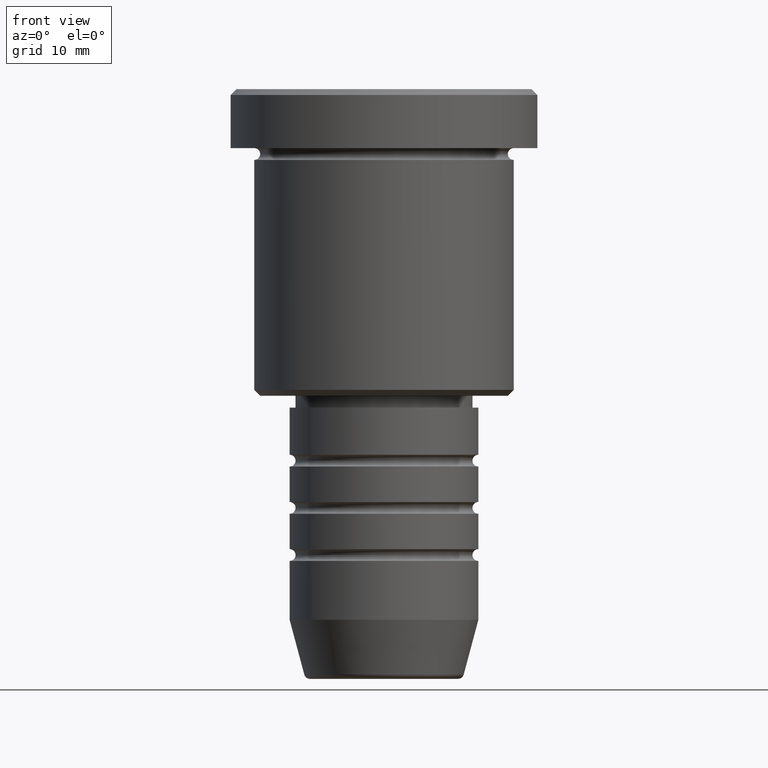
[diagram: clean part render]
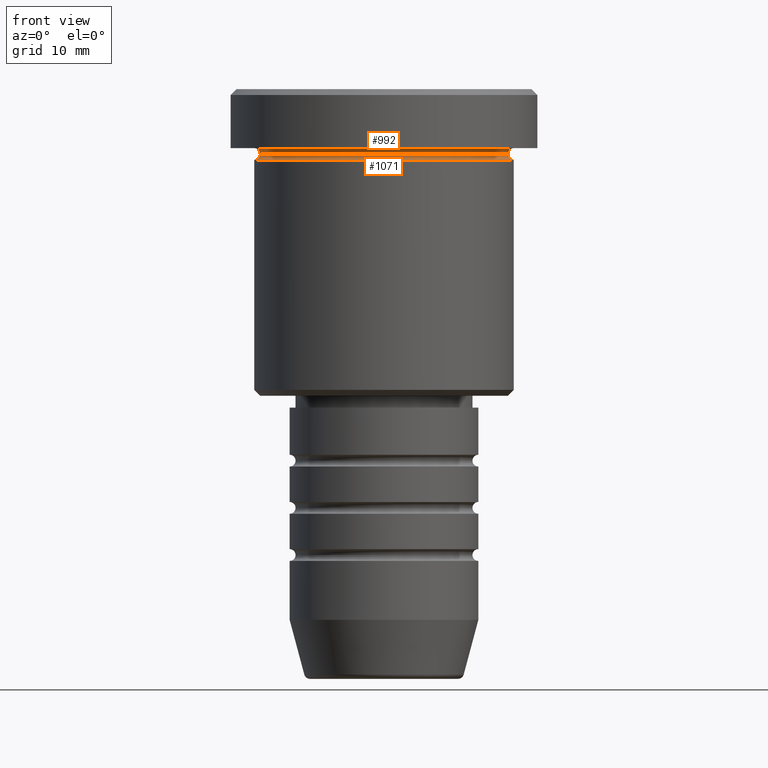
[diagram: same view with one multi-face feature highlighted, each face labeled with its STEP entity id]
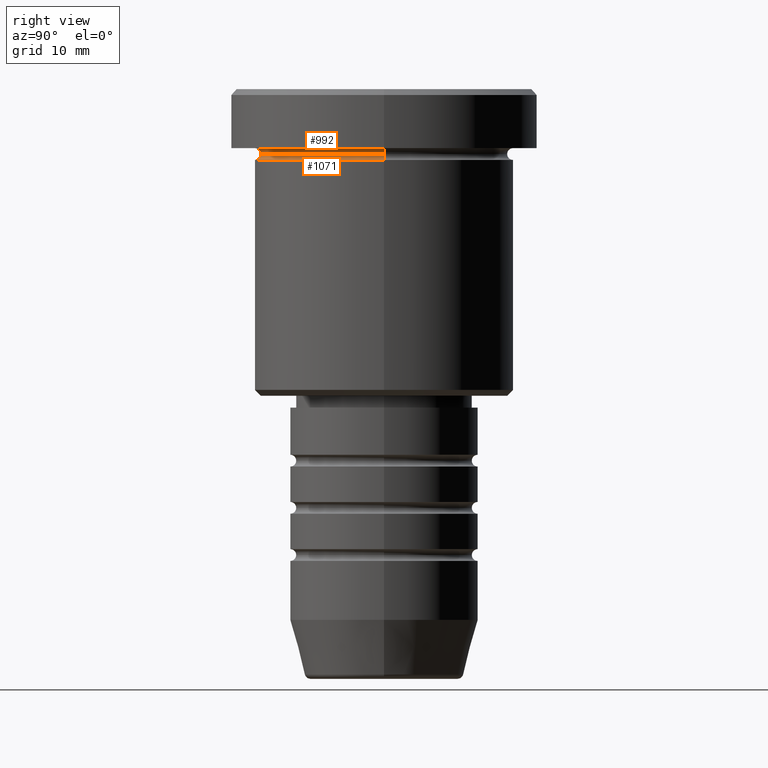
[diagram: same view with one multi-face feature highlighted, each face labeled with its STEP entity id]
A machine part, front view. The highlighted faces form ONE feature: a constant-radius fillet chain: 2 tangent blend faces with common blend radius 0.5 mm. The faces share edges in the B-rep.
A second angle (right view) of the same feature is appended — it is thin or edge-on in the first view.
Their STEP definitions:
[1] entity #992 (Torus):
#50 = CIRCLE ( 'NONE', #438, 0.5000000000000004441 ) ;
#60 = VERTEX_POINT ( 'NONE', #557 ) ;
#75 = DIRECTION ( 'NONE',  ( 0.000000000000000000, 0.000000000000000000, -1.000000000000000000 ) ) ;
#86 = DIRECTION ( 'NONE',  ( -1.000000000000000000, 0.000000000000000000, 0.000000000000000000 ) ) ;
#119 = EDGE_CURVE ( 'NONE', #60, #1101, #663, .T. ) ;
#129 = DIRECTION ( 'NONE',  ( -0.000000000000000000, -0.000000000000000000, 1.000000000000000000 ) ) ;
#201 = DIRECTION ( 'NONE',  ( -1.224646799147353207E-16, 1.000000000000000000, 0.000000000000000000 ) ) ;
#275 = CARTESIAN_POINT ( 'NONE',  ( 0.000000000000000000, 0.000000000000000000, -5.000000000000000000 ) ) ;
#292 = AXIS2_PLACEMENT_3D ( 'NONE', #960, #129, #877 ) ;
#300 = AXIS2_PLACEMENT_3D ( 'NONE', #825, #1177, #364 ) ;
#334 = ORIENTED_EDGE ( 'NONE', *, *, #119, .F. ) ;
#364 = DIRECTION ( 'NONE',  ( 0.000000000000000000, 0.000000000000000000, -1.000000000000000000 ) ) ;
#424 = CARTESIAN_POINT ( 'NONE',  ( 11.00000000000000000, 1.347111479062088405E-15, -4.999999999999999112 ) ) ;
#430 = EDGE_CURVE ( 'NONE', #862, #567, #50, .T. ) ;
#438 = AXIS2_PLACEMENT_3D ( 'NONE', #853, #201, #940 ) ;
#445 = DIRECTION ( 'NONE',  ( -1.000000000000000000, 0.000000000000000000, 0.000000000000000000 ) ) ;
#453 = AXIS2_PLACEMENT_3D ( 'NONE', #615, #75, #86 ) ;
#508 = TOROIDAL_SURFACE ( 'NONE', #453, 11.00000000000000000, 0.5000000000000000000 ) ;
#533 = CARTESIAN_POINT ( 'NONE',  ( -11.00000000000000000, 0.000000000000000000, -4.999999999999999112 ) ) ;
#557 = CARTESIAN_POINT ( 'NONE',  ( -10.49999999999999822, 1.316495309083404420E-15, -5.500000000000000000 ) ) ;
#567 = VERTEX_POINT ( 'NONE', #424 ) ;
#578 = EDGE_CURVE ( 'NONE', #60, #862, #866, .T. ) ;
#582 = FACE_OUTER_BOUND ( 'NONE', #1140, .T. ) ;
#615 = CARTESIAN_POINT ( 'NONE',  ( 0.000000000000000000, 0.000000000000000000, -5.500000000000000000 ) ) ;
#619 = ORIENTED_EDGE ( 'NONE', *, *, #430, .T. ) ;
#663 = CIRCLE ( 'NONE', #300, 0.5000000000000004441 ) ;
#714 = AXIS2_PLACEMENT_3D ( 'NONE', #275, #1007, #445 ) ;
#735 = CIRCLE ( 'NONE', #714, 11.00000000000000000 ) ;
#825 = CARTESIAN_POINT ( 'NONE',  ( -11.00000000000000000, 0.000000000000000000, -5.500000000000000000 ) ) ;
#853 = CARTESIAN_POINT ( 'NONE',  ( 11.00000000000000000, 1.347111479062088405E-15, -5.500000000000000000 ) ) ;
#854 = ORIENTED_EDGE ( 'NONE', *, *, #1005, .F. ) ;
#862 = VERTEX_POINT ( 'NONE', #956 ) ;
#866 = CIRCLE ( 'NONE', #292, 10.49999999999999822 ) ;
#877 = DIRECTION ( 'NONE',  ( 1.000000000000000000, 0.000000000000000000, 0.000000000000000000 ) ) ;
#940 = DIRECTION ( 'NONE',  ( -1.000000000000000000, -1.224646799147353454E-16, 0.000000000000000000 ) ) ;
#956 = CARTESIAN_POINT ( 'NONE',  ( 10.49999999999999822, 0.000000000000000000, -5.500000000000000000 ) ) ;
#960 = CARTESIAN_POINT ( 'NONE',  ( 0.000000000000000000, 0.000000000000000000, -5.500000000000000000 ) ) ;
#992 = ADVANCED_FACE ( 'NONE', ( #582 ), #508, .F. ) ;
#1005 = EDGE_CURVE ( 'NONE', #1101, #567, #735, .T. ) ;
#1007 = DIRECTION ( 'NONE',  ( -0.000000000000000000, -0.000000000000000000, 1.000000000000000000 ) ) ;
#1101 = VERTEX_POINT ( 'NONE', #533 ) ;
#1140 = EDGE_LOOP ( 'NONE', ( #1159, #619, #854, #334 ) ) ;
#1159 = ORIENTED_EDGE ( 'NONE', *, *, #578, .T. ) ;
#1177 = DIRECTION ( 'NONE',  ( -0.000000000000000000, -1.000000000000000000, -0.000000000000000000 ) ) ;
[2] entity #1071 (Torus):
#13 = DIRECTION ( 'NONE',  ( 0.000000000000000000, -1.000000000000000000, 0.000000000000000000 ) ) ;
#36 = CARTESIAN_POINT ( 'NONE',  ( 0.000000000000000000, 0.000000000000000000, -5.500000000000000000 ) ) ;
#60 = VERTEX_POINT ( 'NONE', #557 ) ;
#77 = DIRECTION ( 'NONE',  ( 1.000000000000000000, 0.000000000000000000, 0.000000000000000000 ) ) ;
#80 = EDGE_CURVE ( 'NONE', #60, #784, #291, .T. ) ;
#120 = EDGE_CURVE ( 'NONE', #784, #1178, #412, .T. ) ;
#129 = DIRECTION ( 'NONE',  ( -0.000000000000000000, -0.000000000000000000, 1.000000000000000000 ) ) ;
#211 = TOROIDAL_SURFACE ( 'NONE', #764, 11.00000000000000000, 0.5000000000000000000 ) ;
#227 = DIRECTION ( 'NONE',  ( -1.000000000000000000, 1.224646799147353454E-16, 0.000000000000000000 ) ) ;
#269 = AXIS2_PLACEMENT_3D ( 'NONE', #313, #771, #227 ) ;
#291 = CIRCLE ( 'NONE', #269, 0.5000000000000004441 ) ;
#292 = AXIS2_PLACEMENT_3D ( 'NONE', #960, #129, #877 ) ;
#293 = CIRCLE ( 'NONE', #1128, 0.5000000000000004441 ) ;
#313 = CARTESIAN_POINT ( 'NONE',  ( -11.00000000000000000, 1.347111479062088405E-15, -5.500000000000000000 ) ) ;
#412 = CIRCLE ( 'NONE', #560, 11.00000000000000000 ) ;
#448 = DIRECTION ( 'NONE',  ( 1.000000000000000000, 0.000000000000000000, 0.000000000000000000 ) ) ;
#513 = FACE_OUTER_BOUND ( 'NONE', #673, .T. ) ;
#525 = DIRECTION ( 'NONE',  ( -0.000000000000000000, -0.000000000000000000, 1.000000000000000000 ) ) ;
#557 = CARTESIAN_POINT ( 'NONE',  ( -10.49999999999999822, 1.316495309083404420E-15, -5.500000000000000000 ) ) ;
#560 = AXIS2_PLACEMENT_3D ( 'NONE', #733, #807, #448 ) ;
#571 = ORIENTED_EDGE ( 'NONE', *, *, #859, .F. ) ;
#576 = CARTESIAN_POINT ( 'NONE',  ( 11.00000000000000000, 0.000000000000000000, -5.500000000000000000 ) ) ;
#578 = EDGE_CURVE ( 'NONE', #60, #862, #866, .T. ) ;
#632 = ORIENTED_EDGE ( 'NONE', *, *, #120, .T. ) ;
#645 = DIRECTION ( 'NONE',  ( 0.000000000000000000, 0.000000000000000000, -1.000000000000000000 ) ) ;
#671 = ORIENTED_EDGE ( 'NONE', *, *, #80, .T. ) ;
#673 = EDGE_LOOP ( 'NONE', ( #812, #671, #632, #571 ) ) ;
#733 = CARTESIAN_POINT ( 'NONE',  ( 0.000000000000000000, 0.000000000000000000, -5.999999999999999112 ) ) ;
#764 = AXIS2_PLACEMENT_3D ( 'NONE', #36, #525, #77 ) ;
#771 = DIRECTION ( 'NONE',  ( 1.224646799147353207E-16, 1.000000000000000000, 0.000000000000000000 ) ) ;
#784 = VERTEX_POINT ( 'NONE', #1156 ) ;
#807 = DIRECTION ( 'NONE',  ( -0.000000000000000000, -0.000000000000000000, 1.000000000000000000 ) ) ;
#812 = ORIENTED_EDGE ( 'NONE', *, *, #578, .F. ) ;
#859 = EDGE_CURVE ( 'NONE', #862, #1178, #293, .T. ) ;
#862 = VERTEX_POINT ( 'NONE', #956 ) ;
#866 = CIRCLE ( 'NONE', #292, 10.49999999999999822 ) ;
#877 = DIRECTION ( 'NONE',  ( 1.000000000000000000, 0.000000000000000000, 0.000000000000000000 ) ) ;
#956 = CARTESIAN_POINT ( 'NONE',  ( 10.49999999999999822, 0.000000000000000000, -5.500000000000000000 ) ) ;
#960 = CARTESIAN_POINT ( 'NONE',  ( 0.000000000000000000, 0.000000000000000000, -5.500000000000000000 ) ) ;
#979 = CARTESIAN_POINT ( 'NONE',  ( 11.00000000000000000, 0.000000000000000000, -5.999999999999999112 ) ) ;
#1071 = ADVANCED_FACE ( 'NONE', ( #513 ), #211, .F. ) ;
#1128 = AXIS2_PLACEMENT_3D ( 'NONE', #576, #13, #645 ) ;
#1156 = CARTESIAN_POINT ( 'NONE',  ( -11.00000000000000000, 1.347111479062088405E-15, -5.999999999999999112 ) ) ;
#1178 = VERTEX_POINT ( 'NONE', #979 ) ;